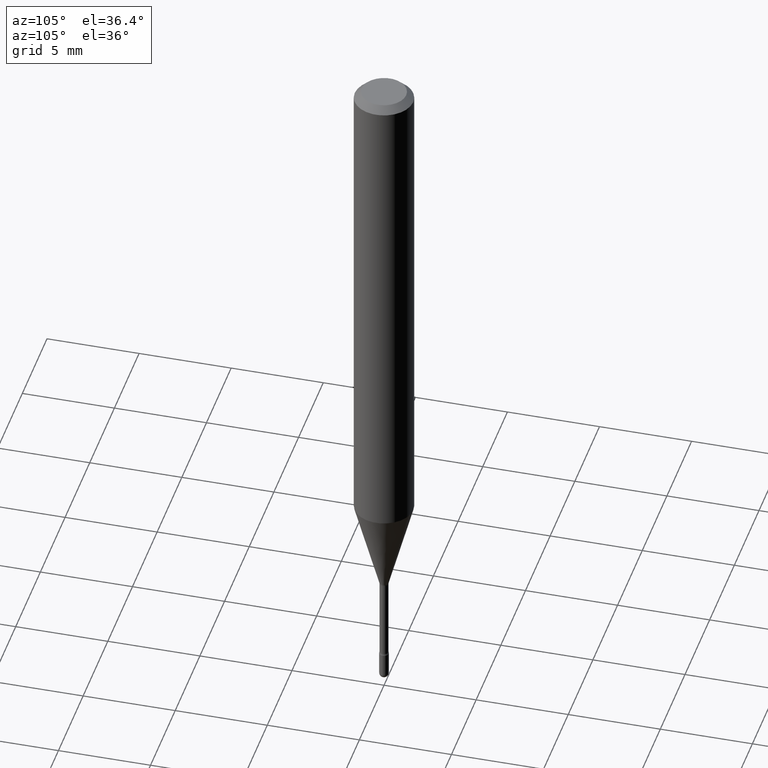
[diagram: clean part render]
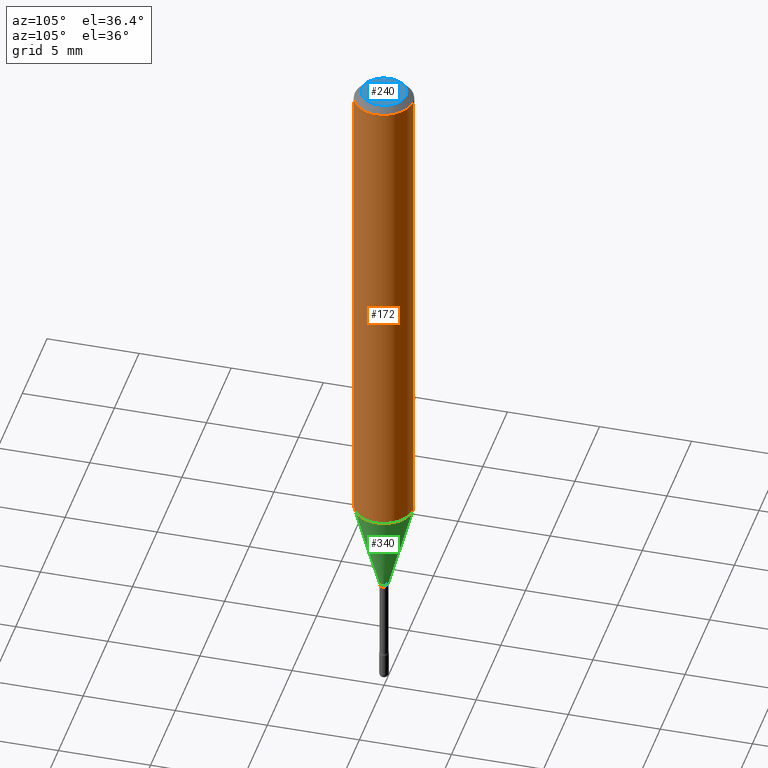
[diagram: same view with three faces highlighted in distinct colors, each labeled with its STEP entity id]
A machine part, auxiliary view with three faces highlighted in distinct colors.
Their STEP definitions:

[orange] entity #172 — the highlighted cylindrical surface (edge-blend (fillet) strip) has radius 1.5875 mm, axis along (-0, 0, 1).
#26 = CARTESIAN_POINT ( 'NONE',  ( -4.364351673553657356E-16, -0.06250000000000371925, -1.061828102118092865 ) ) ;
#27 = DIRECTION ( 'NONE',  ( -6.982962677686265922E-15, -1.000000000000000000, 3.491339807314435149E-15 ) ) ;
#40 = CARTESIAN_POINT ( 'NONE',  ( 4.440892098500884514E-16, 0.06249999999999629463, -1.061828102118093309 ) ) ;
#58 = CARTESIAN_POINT ( 'NONE',  ( 4.440892098500625669E-16, 0.06250000000000000000, 2.598646609340937925E-16 ) ) ;
#74 = EDGE_CURVE ( 'NONE', #458, #464, #422, .T. ) ;
#75 = ORIENTED_EDGE ( 'NONE', *, *, #557, .F. ) ;
#86 = CARTESIAN_POINT ( 'NONE',  ( 2.596772442728175058E-29, -3.707202721450037054E-15, -1.061828102118093087 ) ) ;
#88 = AXIS2_PLACEMENT_3D ( 'NONE', #445, #448, #27 ) ;
#107 = AXIS2_PLACEMENT_3D ( 'NONE', #86, #428, #252 ) ;
#130 = VERTEX_POINT ( 'NONE', #147 ) ;
#147 = CARTESIAN_POINT ( 'NONE',  ( 4.440892098500887472E-16, 0.06249999999999995837, -0.01500000000000030129 ) ) ;
#148 = ORIENTED_EDGE ( 'NONE', *, *, #74, .T. ) ;
#155 = DIRECTION ( 'NONE',  ( -6.982962677686265922E-15, -1.000000000000000000, 3.483106191921935554E-15 ) ) ;
#172 = ADVANCED_FACE ( 'NONE', ( #498 ), #266, .T. ) ;
#200 = AXIS2_PLACEMENT_3D ( 'NONE', #378, #416, #155 ) ;
#205 = EDGE_CURVE ( 'NONE', #458, #321, #354, .T. ) ;
#230 = ORIENTED_EDGE ( 'NONE', *, *, #205, .F. ) ;
#252 = DIRECTION ( 'NONE',  ( -6.982962677686265922E-15, -1.000000000000000000, 4.370956789862821150E-15 ) ) ;
#266 = CYLINDRICAL_SURFACE ( 'NONE', #88, 0.06250000000000000000 ) ;
#305 = LINE ( 'NONE', #58, #532 ) ;
#317 = CARTESIAN_POINT ( 'NONE',  ( -4.364351673553912750E-16, -0.06250000000000005551, -0.01499999999999986587 ) ) ;
#321 = VERTEX_POINT ( 'NONE', #317 ) ;
#354 = LINE ( 'NONE', #400, #398 ) ;
#378 = CARTESIAN_POINT ( 'NONE',  ( 3.668351455685129279E-31, -5.237009710971683760E-17, -0.01500000000000008271 ) ) ;
#398 = VECTOR ( 'NONE', #555, 39.37007874015748143 ) ;
#400 = CARTESIAN_POINT ( 'NONE',  ( -4.364351673553916201E-16, -0.06250000000000000000, 6.962821368483982847E-16 ) ) ;
#403 = EDGE_CURVE ( 'NONE', #464, #130, #305, .T. ) ;
#416 = DIRECTION ( 'NONE',  ( -2.445567637123405880E-29, 3.491339807314436332E-15, 1.000000000000000000 ) ) ;
#422 = CIRCLE ( 'NONE', #107, 0.06250000000000000000 ) ;
#428 = DIRECTION ( 'NONE',  ( -2.445567637123405880E-29, 3.491339807314436332E-15, 1.000000000000000000 ) ) ;
#445 = CARTESIAN_POINT ( 'NONE',  ( -1.169113584055446105E-44, 1.669184350826100908E-30, 4.780733988912460139E-16 ) ) ;
#448 = DIRECTION ( 'NONE',  ( -2.445567637123405880E-29, 3.491339807314436332E-15, 1.000000000000000000 ) ) ;
#458 = VERTEX_POINT ( 'NONE', #26 ) ;
#464 = VERTEX_POINT ( 'NONE', #40 ) ;
#495 = ORIENTED_EDGE ( 'NONE', *, *, #403, .T. ) ;
#498 = FACE_OUTER_BOUND ( 'NONE', #547, .T. ) ;
#512 = CIRCLE ( 'NONE', #200, 0.06250000000000000000 ) ;
#532 = VECTOR ( 'NONE', #549, 39.37007874015748143 ) ;
#547 = EDGE_LOOP ( 'NONE', ( #148, #495, #75, #230 ) ) ;
#549 = DIRECTION ( 'NONE',  ( -2.445567637123405880E-29, 3.491339807314436332E-15, 1.000000000000000000 ) ) ;
#555 = DIRECTION ( 'NONE',  ( -2.445567637123405880E-29, 3.491339807314436332E-15, 1.000000000000000000 ) ) ;
#557 = EDGE_CURVE ( 'NONE', #321, #130, #512, .T. ) ;

[blue] entity #240 — the highlighted planar face has unit normal (0, -0, -1).
#2 = PLANE ( 'NONE',  #291 ) ;
#31 = ORIENTED_EDGE ( 'NONE', *, *, #36, .T. ) ;
#36 = EDGE_CURVE ( 'NONE', #198, #250, #318, .T. ) ;
#41 = AXIS2_PLACEMENT_3D ( 'NONE', #326, #505, #116 ) ;
#114 = ORIENTED_EDGE ( 'NONE', *, *, #479, .T. ) ;
#116 = DIRECTION ( 'NONE',  ( -6.982962677686266711E-15, -1.000000000000000000, 3.491339807314436727E-15 ) ) ;
#120 = DIRECTION ( 'NONE',  ( -6.982962677686266711E-15, -1.000000000000000000, 3.491339807314436727E-15 ) ) ;
#166 = DIRECTION ( 'NONE',  ( -2.445567637123405880E-29, 3.491339807314436332E-15, 1.000000000000000000 ) ) ;
#198 = VERTEX_POINT ( 'NONE', #225 ) ;
#206 = DIRECTION ( 'NONE',  ( 6.982962677686265922E-15, 1.000000000000000000, -3.491339807314436332E-15 ) ) ;
#225 = CARTESIAN_POINT ( 'NONE',  ( -3.773273898774340269E-16, -0.04749999999999999362, 8.308488602827664663E-17 ) ) ;
#236 = FACE_OUTER_BOUND ( 'NONE', #315, .T. ) ;
#240 = ADVANCED_FACE ( 'NONE', ( #236 ), #2, .F. ) ;
#250 = VERTEX_POINT ( 'NONE', #525 ) ;
#291 = AXIS2_PLACEMENT_3D ( 'NONE', #377, #425, #206 ) ;
#315 = EDGE_LOOP ( 'NONE', ( #114, #31 ) ) ;
#318 = CIRCLE ( 'NONE', #41, 0.04749999999999999362 ) ;
#326 = CARTESIAN_POINT ( 'NONE',  ( 2.024271530787545321E-45, -2.888538159458885952E-31, -8.275375481915906387E-17 ) ) ;
#339 = CIRCLE ( 'NONE', #471, 0.04749999999999999362 ) ;
#377 = CARTESIAN_POINT ( 'NONE',  ( 3.316907271900976096E-16, 0.04749999999999999362, 3.182118118860778301E-17 ) ) ;
#425 = DIRECTION ( 'NONE',  ( 2.445567637123405600E-29, -3.491339807314436332E-15, -1.000000000000000000 ) ) ;
#462 = CARTESIAN_POINT ( 'NONE',  ( 2.024271530787545321E-45, -2.888538159458885952E-31, -8.275375481915906387E-17 ) ) ;
#471 = AXIS2_PLACEMENT_3D ( 'NONE', #462, #166, #120 ) ;
#479 = EDGE_CURVE ( 'NONE', #250, #198, #339, .T. ) ;
#505 = DIRECTION ( 'NONE',  ( -2.445567637123405880E-29, 3.491339807314436332E-15, 1.000000000000000000 ) ) ;
#525 = CARTESIAN_POINT ( 'NONE',  ( 3.840629472727447874E-16, 0.04749999999999999362, -2.485923956665947867E-16 ) ) ;

[green] entity #340 — the highlighted conical surface has half-angle 15 deg.
#19 = EDGE_CURVE ( 'NONE', #24, #464, #66, .T. ) ;
#24 = VERTEX_POINT ( 'NONE', #29 ) ;
#26 = CARTESIAN_POINT ( 'NONE',  ( -4.364351673553657356E-16, -0.06250000000000371925, -1.061828102118092865 ) ) ;
#29 = CARTESIAN_POINT ( 'NONE',  ( 2.572559502513342919E-16, 0.009911112605659591623, -1.258092501787273276 ) ) ;
#40 = CARTESIAN_POINT ( 'NONE',  ( 4.440892098500884514E-16, 0.06249999999999629463, -1.061828102118093309 ) ) ;
#47 = CARTESIAN_POINT ( 'NONE',  ( -6.920892941966669973E-17, -0.009911112605668376263, -1.258092501787273276 ) ) ;
#66 = LINE ( 'NONE', #491, #421 ) ;
#74 = EDGE_CURVE ( 'NONE', #458, #464, #422, .T. ) ;
#76 = CARTESIAN_POINT ( 'NONE',  ( -6.920892941966669973E-17, -0.009911112605668376263, -1.258092501787273276 ) ) ;
#86 = CARTESIAN_POINT ( 'NONE',  ( 2.596772442728175058E-29, -3.707202721450037054E-15, -1.061828102118093087 ) ) ;
#107 = AXIS2_PLACEMENT_3D ( 'NONE', #86, #428, #252 ) ;
#210 = AXIS2_PLACEMENT_3D ( 'NONE', #443, #269, #450 ) ;
#217 = CIRCLE ( 'NONE', #210, 0.009911112605663983943 ) ;
#228 = AXIS2_PLACEMENT_3D ( 'NONE', #548, #554, #265 ) ;
#233 = ORIENTED_EDGE ( 'NONE', *, *, #538, .T. ) ;
#241 = DIRECTION ( 'NONE',  ( -1.807323732225326195E-15, -0.2588190451025176309, 0.9659258262890690894 ) ) ;
#252 = DIRECTION ( 'NONE',  ( -6.982962677686265922E-15, -1.000000000000000000, 4.370956789862821150E-15 ) ) ;
#265 = DIRECTION ( 'NONE',  ( -6.982962677686264344E-15, -1.000000000000000000, 0.000000000000000000 ) ) ;
#268 = DIRECTION ( 'NONE',  ( 1.839019923739596371E-15, 0.2588190451025244032, 0.9659258262890673130 ) ) ;
#269 = DIRECTION ( 'NONE',  ( -2.445567637123405880E-29, 3.491339807314436332E-15, 1.000000000000000000 ) ) ;
#276 = FACE_OUTER_BOUND ( 'NONE', #366, .T. ) ;
#340 = ADVANCED_FACE ( 'NONE', ( #276 ), #476, .T. ) ;
#350 = ORIENTED_EDGE ( 'NONE', *, *, #19, .T. ) ;
#366 = EDGE_LOOP ( 'NONE', ( #233, #350, #407, #442 ) ) ;
#407 = ORIENTED_EDGE ( 'NONE', *, *, #74, .F. ) ;
#421 = VECTOR ( 'NONE', #268, 39.37007874015748143 ) ;
#422 = CIRCLE ( 'NONE', #107, 0.06250000000000000000 ) ;
#423 = VECTOR ( 'NONE', #241, 39.37007874015748854 ) ;
#428 = DIRECTION ( 'NONE',  ( -2.445567637123405880E-29, 3.491339807314436332E-15, 1.000000000000000000 ) ) ;
#442 = ORIENTED_EDGE ( 'NONE', *, *, #560, .F. ) ;
#443 = CARTESIAN_POINT ( 'NONE',  ( 3.076750306878576560E-29, -4.392428432773716738E-15, -1.258092501787273276 ) ) ;
#450 = DIRECTION ( 'NONE',  ( -6.982962677686264344E-15, -1.000000000000000000, 0.000000000000000000 ) ) ;
#458 = VERTEX_POINT ( 'NONE', #26 ) ;
#464 = VERTEX_POINT ( 'NONE', #40 ) ;
#466 = LINE ( 'NONE', #76, #423 ) ;
#476 = CONICAL_SURFACE ( 'NONE', #228, 0.009911112605663983943, 0.2617993877991496854 ) ;
#491 = CARTESIAN_POINT ( 'NONE',  ( 7.042269065257977501E-17, 0.009911112605659591623, -1.258092501787273276 ) ) ;
#526 = VERTEX_POINT ( 'NONE', #47 ) ;
#538 = EDGE_CURVE ( 'NONE', #526, #24, #217, .T. ) ;
#548 = CARTESIAN_POINT ( 'NONE',  ( 3.076750306878576560E-29, -4.392428432773716738E-15, -1.258092501787273276 ) ) ;
#554 = DIRECTION ( 'NONE',  ( -2.445567637123405880E-29, 3.491339807314436332E-15, 1.000000000000000000 ) ) ;
#560 = EDGE_CURVE ( 'NONE', #526, #458, #466, .T. ) ;